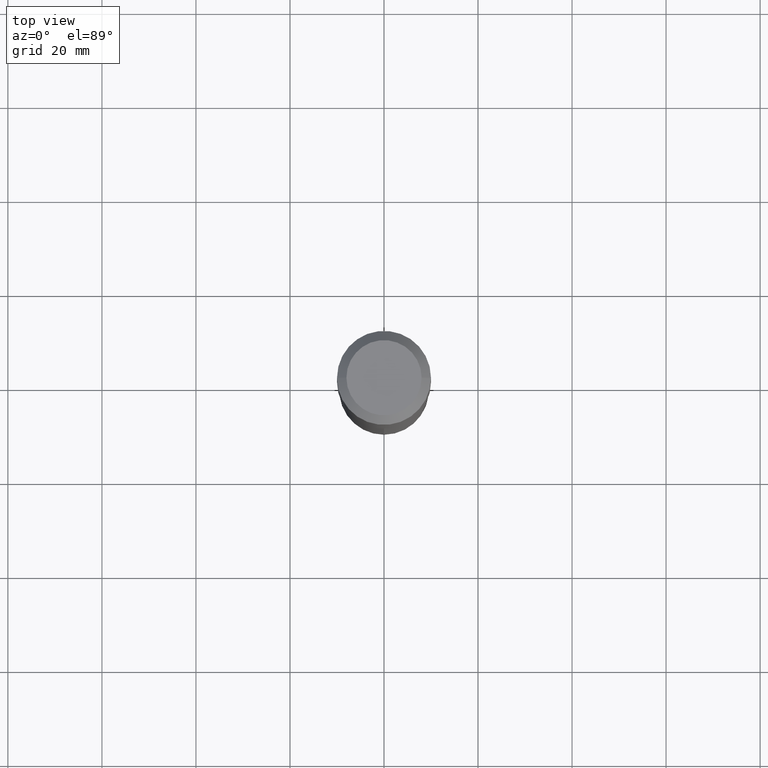
[diagram: clean part render]
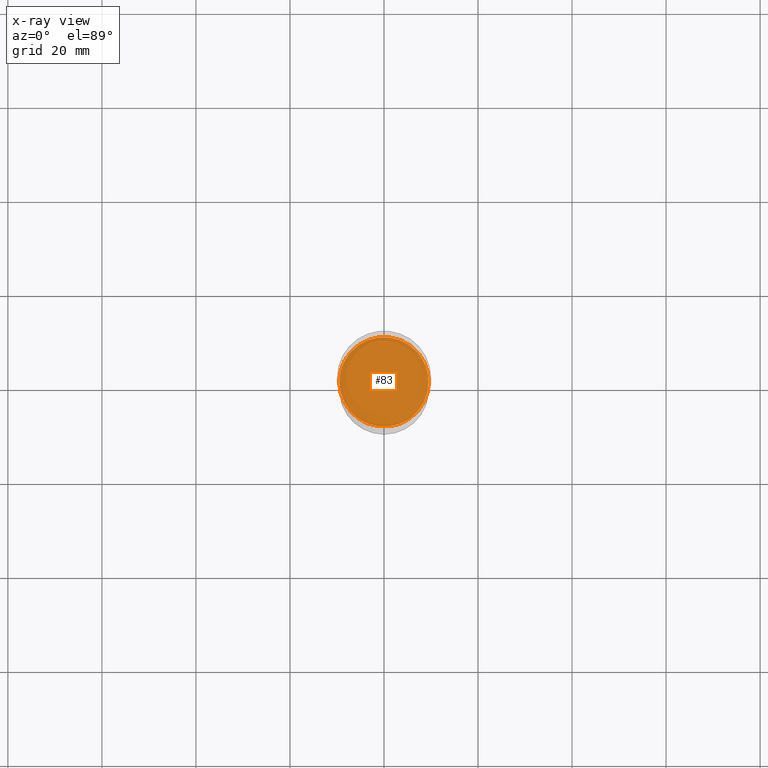
[diagram: x-ray — body ghosted, one internal face saturated and labeled with its STEP entity id]
A machine part, top view, then the same camera in x-ray: the body is ghosted and one INTERNAL B-rep face — a face not visible from any outside direction — is saturated and labeled: STEP entity #83.
In plain terms, the highlighted planar face has unit normal (-0, 0, 1).
Its self-contained STEP definition (entity closure, byte-faithful):
#7 = CARTESIAN_POINT ( 'NONE',  ( 0.3745000000000000551, -9.764276712208733992E-15, -2.047600000000000531 ) ) ;
#35 = AXIS2_PLACEMENT_3D ( 'NONE', #363, #352, #391 ) ;
#49 = FACE_OUTER_BOUND ( 'NONE', #488, .T. ) ;
#83 = ADVANCED_FACE ( 'NONE', ( #49 ), #197, .F. ) ;
#133 = DIRECTION ( 'NONE',  ( 1.000000000000000000, -6.982962677686265922E-15, 0.000000000000000000 ) ) ;
#146 = AXIS2_PLACEMENT_3D ( 'NONE', #461, #335, #133 ) ;
#172 = EDGE_CURVE ( 'NONE', #246, #203, #439, .T. ) ;
#182 = CARTESIAN_POINT ( 'NONE',  ( -0.3745000000000000551, -4.485525416819539405E-15, -2.047600000000000531 ) ) ;
#197 = PLANE ( 'NONE',  #35 ) ;
#203 = VERTEX_POINT ( 'NONE', #7 ) ;
#239 = CIRCLE ( 'NONE', #471, 0.3745000000000000551 ) ;
#246 = VERTEX_POINT ( 'NONE', #182 ) ;
#254 = CARTESIAN_POINT ( 'NONE',  ( 5.007341927544686818E-29, -7.149157189415226982E-15, -2.047600000000000531 ) ) ;
#313 = EDGE_CURVE ( 'NONE', #203, #246, #239, .T. ) ;
#335 = DIRECTION ( 'NONE',  ( -2.445468806185136597E-29, 3.491481338843145583E-15, 1.000000000000000000 ) ) ;
#346 = DIRECTION ( 'NONE',  ( 1.000000000000000000, -6.982962677686265922E-15, 0.000000000000000000 ) ) ;
#352 = DIRECTION ( 'NONE',  ( -2.438088387897960049E-29, 3.491481338843145188E-15, 1.000000000000000000 ) ) ;
#355 = ORIENTED_EDGE ( 'NONE', *, *, #172, .F. ) ;
#363 = CARTESIAN_POINT ( 'NONE',  ( 5.007341927544686818E-29, -7.149157189415226982E-15, -2.047600000000000531 ) ) ;
#391 = DIRECTION ( 'NONE',  ( 1.000000000000000000, -6.982962677686265922E-15, 4.876176775795935793E-29 ) ) ;
#413 = DIRECTION ( 'NONE',  ( -2.445468806185136597E-29, 3.491481338843145583E-15, 1.000000000000000000 ) ) ;
#439 = CIRCLE ( 'NONE', #146, 0.3745000000000000551 ) ;
#461 = CARTESIAN_POINT ( 'NONE',  ( 5.007341927544686818E-29, -7.149157189415226982E-15, -2.047600000000000531 ) ) ;
#471 = AXIS2_PLACEMENT_3D ( 'NONE', #254, #413, #346 ) ;
#482 = ORIENTED_EDGE ( 'NONE', *, *, #313, .F. ) ;
#488 = EDGE_LOOP ( 'NONE', ( #482, #355 ) ) ;